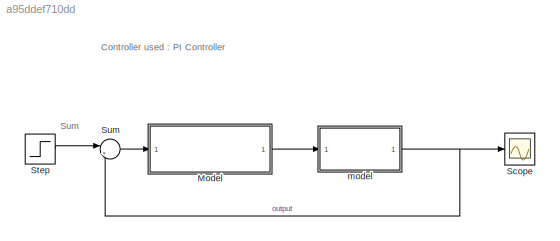
MODEL slx_a95ddef710dd
KIND model
CONFIG AbsTol = auto
CONFIG EnableMultiTasking = off
CONFIG FixedStep = 0.01
CONFIG MaxStep = auto
CONFIG MinStep = auto
CONFIG PostLoadFcn = m=1000;\nb=50;\nr=10;\nKp=93563.6529;\nKi=3004.6442;\nu=5;
CONFIG RelTol = 1e-3
CONFIG SampleTimeConstraint = Unconstrained
CONFIG SolverName = FixedStepAuto
CONFIG StartTime = 0.0
CONFIG StopTime = 10.0
BLOCK [ModelReference] Model
  ModelNameDialog = problem3_controller.slx
  ModelReferenceVersion = 1.2
  Ports = [1, 1]
BLOCK [Scope] Scope
  Floating = off
  NumInputPorts = 1
  Ports = [1]
  ScopeSpecificationString = Simulink.scopes.TimeScopeBlockCfg('CurrentConfiguration', extmgr.ConfigurationSet(extmgr.Configuration('Core','General UI',true),extmgr.Configuration('Core','Source UI',true),extmgr.Configuration('Sources','WiredSimulink',true),extmgr.Configuration('Visuals','Time Domain',true,'SerializedDisplays',{struct('MinYLimReal','-0.62491','MaxYLimReal','5.62422','YLabelReal','','MinYLimMag','0.00000','MaxY...<+1326ch>
BLOCK [Step] Step
  After = u
  SampleTime = 0
  Time = 0
BLOCK [Sum] Sum
  Inputs = |+-
  Ports = [2, 1]
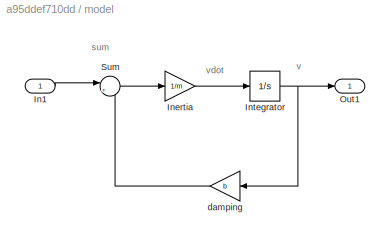
BLOCK [SubSystem] model
  Ports = [1, 1]
  RequestExecContextInheritance = off
BLOCK [Inport] model/In1
BLOCK [Gain] model/Inertia
  Gain = 1/m
BLOCK [Integrator] model/Integrator
  Ports = [1, 1]
BLOCK [Outport] model/Out1
BLOCK [Sum] model/Sum
  Inputs = |+-
  Ports = [2, 1]
BLOCK [Gain] model/damping
  Gain = b
ANNOTATION (root): Controller used : PI Controller
ANNOTATION (root): Sum
ANNOTATION model: sum
ANNOTATION model: v
ANNOTATION model: vdot
LINE Model:1 -> model:1
LINE Step:1 -> Sum:1
LINE Sum:1 -> Model:1
LINE model/In1:1 -> model/Sum:1
LINE model/Inertia:1 -> model/Integrator:1
NET model/Integrator:1 -> model/Out1:1, model/damping:1
LINE model/Sum:1 -> model/Inertia:1
LINE model/damping:1 -> model/Sum:2
NET model:1 -> Scope:1, Sum:2
note: NET lines group one-source signal fan-out (src -> all destinations, sorted); 1:1 wires keep LINE
